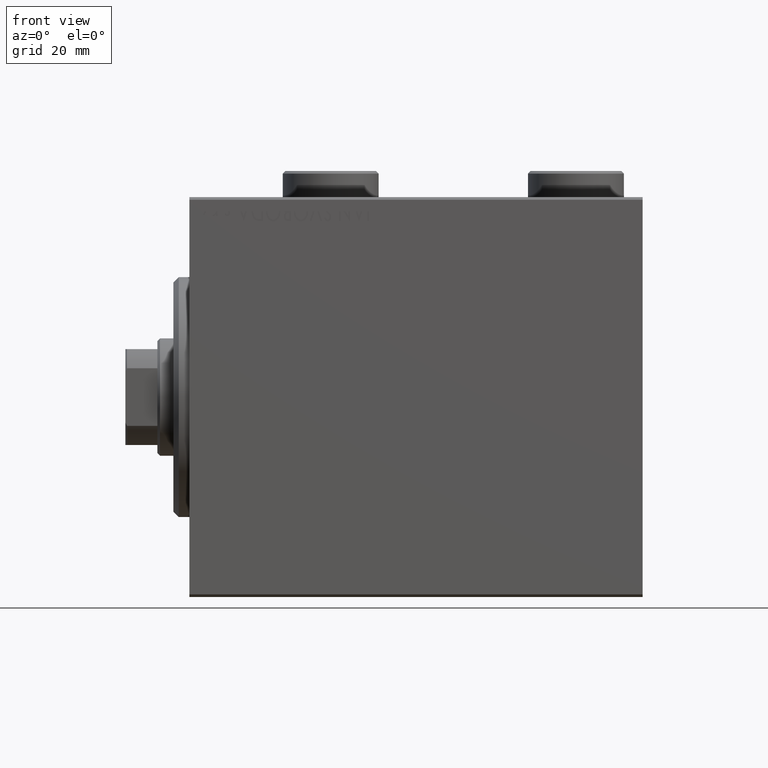
[diagram: clean part render]
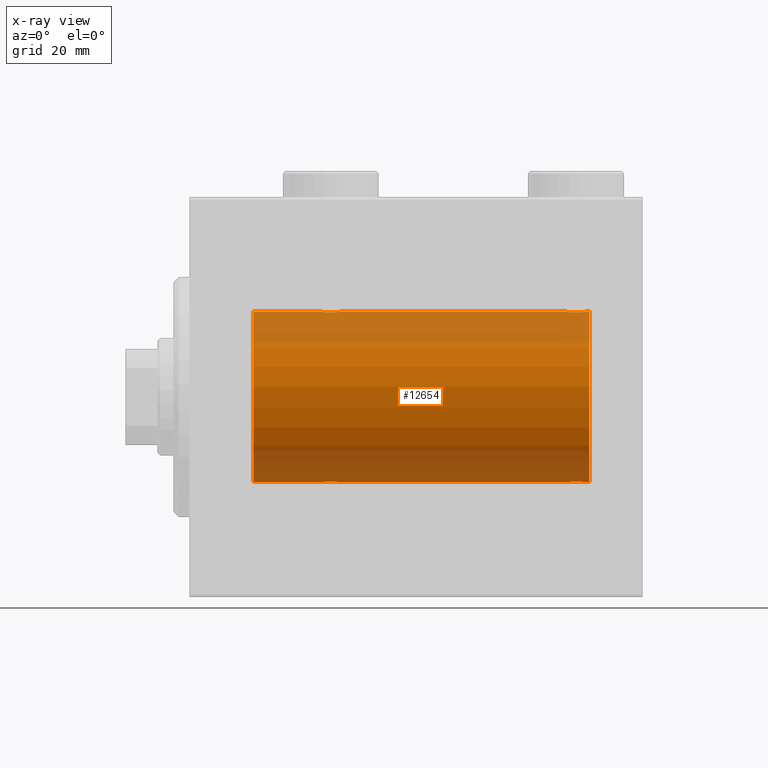
[diagram: x-ray — body ghosted, one internal face saturated and labeled with its STEP entity id]
A machine part, front view, then the same camera in x-ray: the body is ghosted and one INTERNAL B-rep face — a face not visible from any outside direction — is saturated and labeled: STEP entity #12654.
In plain terms, the highlighted cylindrical surface (partial cylindrical patch) has radius 16 mm, axis along (-1, -0, -0).
Its self-contained STEP definition (entity closure, byte-faithful):
#63 = CARTESIAN_POINT ( 'NONE',  ( 11.99999999999999645, 1.959434878635765131E-15, -16.00000000000000000 ) ) ;
#517 = LINE ( 'NONE', #31849, #35931 ) ;
#552 = EDGE_CURVE ( 'NONE', #7881, #22980, #4979, .T. ) ;
#604 = CARTESIAN_POINT ( 'NONE',  ( 75.00000000000000000, 0.000000000000000000, 16.00000000000000000 ) ) ;
#1379 = CARTESIAN_POINT ( 'NONE',  ( 71.98062885452071669, -1.935780515549992975, 15.88248768234622865 ) ) ;
#1601 = CARTESIAN_POINT ( 'NONE',  ( 25.27971966521589664, -1.589957129871035768, 15.92097237843274549 ) ) ;
#1906 = CARTESIAN_POINT ( 'NONE',  ( 24.50000000000000000, -2.739635037742051899E-23, 16.00000000000000000 ) ) ;
#2263 = CARTESIAN_POINT ( 'NONE',  ( 27.82104334803405266, -1.507256214862787713, 15.92911555180482530 ) ) ;
#2698 = CARTESIAN_POINT ( 'NONE',  ( 72.23917179650635489, -1.987201773464433607, -15.87613558886576470 ) ) ;
#2937 = CARTESIAN_POINT ( 'NONE',  ( 70.90236864042799425, -1.231048876942805403, -15.95364199493483071 ) ) ;
#3171 = CARTESIAN_POINT ( 'NONE',  ( 70.55325995304359310, -0.5272875822566887027, -15.99312147175147381 ) ) ;
#3262 = ORIENTED_EDGE ( 'NONE', *, *, #20345, .T. ) ;
#3331 = CARTESIAN_POINT ( 'NONE',  ( 27.38846140829280529, -1.796613193944152753, -15.89889131367403330 ) ) ;
#3337 = CARTESIAN_POINT ( 'NONE',  ( 24.50000000000000000, -2.931586893697621157E-15, -16.00000000000000000 ) ) ;
#3605 = CIRCLE ( 'NONE', #23441, 16.00000000000000000 ) ;
#3755 = CARTESIAN_POINT ( 'NONE',  ( 26.23629537121825095, -1.986819684797424435, 15.87618369521983475 ) ) ;
#3936 = VERTEX_POINT ( 'NONE', #3337 ) ;
#4461 = DIRECTION ( 'NONE',  ( -1.000000000000000000, -0.000000000000000000, -0.000000000000000000 ) ) ;
#4828 = VERTEX_POINT ( 'NONE', #1906 ) ;
#4979 = B_SPLINE_CURVE_WITH_KNOTS ( 'NONE', 3,
 ( #30155, #29489, #43991, #43551, #33394, #37073, #19328, #12188, #36406, #15869, #1379, #12412, #36181, #11971, #26476, #26032, #40083, #5503, #43771, #8513, #39860, #8298, #19547, #44221, #12640, #26698 ),
 .UNSPECIFIED., .F., .F.,
 ( 4, 2, 2, 2, 2, 2, 2, 2, 2, 2, 2, 2, 4 ),
 ( 0.006259031236593860792, 0.007041222816026923743, 0.007823414395459986695, 0.008214510185176517737, 0.008605605974893048779, 0.008996701764609579821, 0.009387797554326112598, 0.009778893344042641905, 0.01016998913375917295, 0.01056108492347570399, 0.01095218071319223503, 0.01173437229262532661, 0.01251656387205841645 ),
 .UNSPECIFIED. ) ;
#5054 = CARTESIAN_POINT ( 'NONE',  ( 24.90061418674620342, -1.228793614424124714, 15.95381972293797368 ) ) ;
#5480 = CARTESIAN_POINT ( 'NONE',  ( 73.82304844713208070, -1.505501573616973898, -15.92928245046055302 ) ) ;
#5499 = CARTESIAN_POINT ( 'NONE',  ( 27.14376670717340545, -1.898087287925302125, 15.88709570026284545 ) ) ;
#5503 = CARTESIAN_POINT ( 'NONE',  ( 73.38592149968499712, -1.797863738508694853, 15.89874935709250536 ) ) ;
#5905 = EDGE_CURVE ( 'NONE', #17628, #41687, #517, .T. ) ;
#5965 = VERTEX_POINT ( 'NONE', #63 ) ;
#6083 = CARTESIAN_POINT ( 'NONE',  ( 75.00000000000000000, 0.000000000000000000, 0.000000000000000000 ) ) ;
#6180 = CARTESIAN_POINT ( 'NONE',  ( 28.44674004695639624, -0.5272875822566815973, 15.99312147175146670 ) ) ;
#6182 = DIRECTION ( 'NONE',  ( -1.000000000000000000, -0.000000000000000000, -0.000000000000000000 ) ) ;
#6312 = CARTESIAN_POINT ( 'NONE',  ( 24.55325995304361086, -0.5272875822566835957, -15.99312147175147736 ) ) ;
#6415 = EDGE_CURVE ( 'NONE', #5965, #19050, #3605, .T. ) ;
#6460 = CARTESIAN_POINT ( 'NONE',  ( 70.50000000000000000, -2.738767290746308786E-23, 16.00000000000000000 ) ) ;
#6630 = B_SPLINE_CURVE_WITH_KNOTS ( 'NONE', 3,
 ( #7232, #38800, #45264, #41796, #44804, #24295, #17828, #34657, #3331, #16912, #27978, #42029, #31653, #30966, #24054, #6772, #45491, #10453, #20594, #20830, #27519, #24527, #38570, #6312, #7002, #13223 ),
 .UNSPECIFIED., .F., .F.,
 ( 4, 2, 2, 2, 2, 2, 2, 2, 2, 2, 2, 2, 4 ),
 ( 0.006259031236593877272, 0.007041222816026943693, 0.007823414395460009246, 0.008214510185176542023, 0.008605605974893074800, 0.008996701764609607577, 0.009387797554326140353, 0.009778893344042673130, 0.01016998913375920591, 0.01056108492347573868, 0.01095218071319227146, 0.01173437229262534222, 0.01251656387205841471 ),
 .UNSPECIFIED. ) ;
#6772 = CARTESIAN_POINT ( 'NONE',  ( 25.98335998918949841, -1.936513707523809469, -15.88239801746204805 ) ) ;
#6981 = EDGE_LOOP ( 'NONE', ( #27794, #10996, #34768, #39068, #24653, #42570, #8056, #27288, #3262, #40691, #40638, #15590 ) ) ;
#7002 = CARTESIAN_POINT ( 'NONE',  ( 24.50000000000000711, -0.2645044045393414311, -16.00000000000000355 ) ) ;
#7232 = CARTESIAN_POINT ( 'NONE',  ( 28.49999999999999645, 1.959434851239213200E-15, -16.00000000000000000 ) ) ;
#7549 = CARTESIAN_POINT ( 'NONE',  ( 75.00000000000000000, 0.000000000000000000, 0.000000000000000000 ) ) ;
#7881 = VERTEX_POINT ( 'NONE', #6460 ) ;
#8056 = ORIENTED_EDGE ( 'NONE', *, *, #6415, .T. ) ;
#8137 = CARTESIAN_POINT ( 'NONE',  ( 75.00000000000000000, 0.000000000000000000, 16.00000000000000000 ) ) ;
#8298 = CARTESIAN_POINT ( 'NONE',  ( 74.09763135957201996, -1.231048876942789194, 15.95364199493483426 ) ) ;
#8503 = DIRECTION ( 'NONE',  ( -1.000000000000000000, 0.000000000000000000, 0.000000000000000000 ) ) ;
#8513 = CARTESIAN_POINT ( 'NONE',  ( 73.71821872840287426, -1.591545514129673267, 15.92081325887755305 ) ) ;
#8733 = CARTESIAN_POINT ( 'NONE',  ( 25.17695155286792286, -1.505501573616977673, 15.92928245046054947 ) ) ;
#8935 = CARTESIAN_POINT ( 'NONE',  ( 74.24816627006210012, -1.005876079953902824, -15.97016854943970188 ) ) ;
#8952 = CARTESIAN_POINT ( 'NONE',  ( 26.36633336824380436, -1.999904855391111402, 15.87451985347842687 ) ) ;
#9175 = CARTESIAN_POINT ( 'NONE',  ( 27.71821872840285295, -1.591545514129674821, 15.92081325887754595 ) ) ;
#9396 = CARTESIAN_POINT ( 'NONE',  ( 26.76082820349364866, -1.987201773464435828, 15.87613558886576470 ) ) ;
#10303 = CARTESIAN_POINT ( 'NONE',  ( 71.49921634246592816, -1.736521253711148072, -15.90565326803670310 ) ) ;
#10453 = CARTESIAN_POINT ( 'NONE',  ( 25.61407850031505617, -1.797863738508699294, -15.89874935709251247 ) ) ;
#10926 = CARTESIAN_POINT ( 'NONE',  ( 75.00000000000000000, 1.959434878635765131E-15, -16.00000000000000000 ) ) ;
#10996 = ORIENTED_EDGE ( 'NONE', *, *, #13111, .T. ) ;
#11080 = DIRECTION ( 'NONE',  ( -1.000000000000000000, -0.000000000000000000, -0.000000000000000000 ) ) ;
#11101 = EDGE_CURVE ( 'NONE', #7881, #21332, #11357, .T. ) ;
#11227 = DIRECTION ( 'NONE',  ( -1.000000000000000000, 0.000000000000000000, 0.000000000000000000 ) ) ;
#11269 = EDGE_CURVE ( 'NONE', #33283, #22980, #41893, .T. ) ;
#11357 = LINE ( 'NONE', #8137, #18455 ) ;
#11552 = AXIS2_PLACEMENT_3D ( 'NONE', #7549, #11227, #25068 ) ;
#11971 = CARTESIAN_POINT ( 'NONE',  ( 72.63080408576580282, -2.000094120337579273, 15.87449600834271024 ) ) ;
#12188 = CARTESIAN_POINT ( 'NONE',  ( 71.49679215208686855, -1.735114343256368930, 15.90580722143557857 ) ) ;
#12412 = CARTESIAN_POINT ( 'NONE',  ( 72.23629537121829003, -1.986819684797422658, 15.87618369521983830 ) ) ;
#12640 = CARTESIAN_POINT ( 'NONE',  ( 74.50000000000000000, -0.2645044045393390997, 15.99999999999999645 ) ) ;
#12654 = ADVANCED_FACE ( 'NONE', ( #41339 ), #37644, .F. ) ;
#12874 = CARTESIAN_POINT ( 'NONE',  ( 75.00000000000000000, 1.959434878635765131E-15, -16.00000000000000000 ) ) ;
#13111 = EDGE_CURVE ( 'NONE', #18175, #29590, #23252, .T. ) ;
#13223 = CARTESIAN_POINT ( 'NONE',  ( 24.50000000000000000, -2.931586893697621157E-15, -16.00000000000000000 ) ) ;
#14348 = VECTOR ( 'NONE', #6182, 1000.000000000000000 ) ;
#14803 = EDGE_CURVE ( 'NONE', #41687, #3936, #6630, .T. ) ;
#15281 = CARTESIAN_POINT ( 'NONE',  ( 74.50000000000001421, 3.590027768233731054E-15, 16.00000000000000000 ) ) ;
#15590 = ORIENTED_EDGE ( 'NONE', *, *, #11269, .F. ) ;
#15651 = CARTESIAN_POINT ( 'NONE',  ( 25.49679215208682592, -1.735114343256370262, 15.90580722143557502 ) ) ;
#15869 = CARTESIAN_POINT ( 'NONE',  ( 71.85363637129542269, -1.897207606501646771, 15.88720136683946471 ) ) ;
#16539 = CARTESIAN_POINT ( 'NONE',  ( 27.38592149968496514, -1.797863738508701736, 15.89874935709250892 ) ) ;
#16744 = CARTESIAN_POINT ( 'NONE',  ( 71.17895665196596156, -1.507256214862789268, -15.92911555180481464 ) ) ;
#16755 = VECTOR ( 'NONE', #11080, 1000.000000000000000 ) ;
#16912 = CARTESIAN_POINT ( 'NONE',  ( 27.14636362870458086, -1.897207606501646104, -15.88720136683947537 ) ) ;
#17216 = CARTESIAN_POINT ( 'NONE',  ( 72.76370462878179524, -1.986819684797421326, -15.87618369521984185 ) ) ;
#17443 = CARTESIAN_POINT ( 'NONE',  ( 70.50000000000000000, -8.578174582294765095E-15, -16.00000000000000000 ) ) ;
#17626 = CARTESIAN_POINT ( 'NONE',  ( 28.49999999999999645, 1.959434851239213200E-15, -16.00000000000000000 ) ) ;
#17628 = VERTEX_POINT ( 'NONE', #29295 ) ;
#17681 = CARTESIAN_POINT ( 'NONE',  ( 73.14636362870459152, -1.897207606501649435, -15.88720136683946826 ) ) ;
#17828 = CARTESIAN_POINT ( 'NONE',  ( 27.72028033478412112, -1.589957129871027330, -15.92097237843274904 ) ) ;
#18175 = VERTEX_POINT ( 'NONE', #10926 ) ;
#18455 = VECTOR ( 'NONE', #4461, 1000.000000000000000 ) ;
#19050 = VERTEX_POINT ( 'NONE', #26622 ) ;
#19303 = CARTESIAN_POINT ( 'NONE',  ( 74.44751141031269981, -0.5244724041436332751, -15.99321727742821331 ) ) ;
#19328 = CARTESIAN_POINT ( 'NONE',  ( 71.27971966521592151, -1.589957129871035102, 15.92097237843275259 ) ) ;
#19524 = CARTESIAN_POINT ( 'NONE',  ( 73.72028033478413533, -1.589957129871036212, -15.92097237843274904 ) ) ;
#19547 = CARTESIAN_POINT ( 'NONE',  ( 74.24678128854695558, -1.008257970366810641, 15.97001510549667458 ) ) ;
#19771 = CARTESIAN_POINT ( 'NONE',  ( 28.49999999999999289, -0.2645044045393371013, 16.00000000000000000 ) ) ;
#20345 = EDGE_CURVE ( 'NONE', #4828, #21332, #44288, .T. ) ;
#20594 = CARTESIAN_POINT ( 'NONE',  ( 25.49921634246596014, -1.736521253711144963, -15.90565326803671375 ) ) ;
#20830 = CARTESIAN_POINT ( 'NONE',  ( 25.28178127159713995, -1.591545514129671046, -15.92081325887754417 ) ) ;
#21132 = CARTESIAN_POINT ( 'NONE',  ( 71.98335998918952328, -1.936513707523812577, -15.88239801746205160 ) ) ;
#21260 = CARTESIAN_POINT ( 'NONE',  ( 24.50000000000000000, -2.739635037742051899E-23, 16.00000000000000000 ) ) ;
#21332 = VERTEX_POINT ( 'NONE', #28362 ) ;
#22565 = CARTESIAN_POINT ( 'NONE',  ( 24.50000000000000355, -0.2611263091397209579, 16.00000000000000000 ) ) ;
#22794 = CARTESIAN_POINT ( 'NONE',  ( 25.85363637129542624, -1.897207606501653432, 15.88720136683947182 ) ) ;
#22980 = VERTEX_POINT ( 'NONE', #15281 ) ;
#22999 = CARTESIAN_POINT ( 'NONE',  ( 74.50000000000000000, -0.2611263091397177938, -16.00000000000000000 ) ) ;
#23231 = CARTESIAN_POINT ( 'NONE',  ( 11.99999999999999645, 0.000000000000000000, 0.000000000000000000 ) ) ;
#23252 = LINE ( 'NONE', #12874, #36875 ) ;
#23439 = CARTESIAN_POINT ( 'NONE',  ( 74.50000000000001421, 1.959434851248285101E-15, -16.00000000000000000 ) ) ;
#23441 = AXIS2_PLACEMENT_3D ( 'NONE', #23231, #8503, #37277 ) ;
#24054 = CARTESIAN_POINT ( 'NONE',  ( 26.23917179650637266, -1.987201773464430055, -15.87613558886576470 ) ) ;
#24132 = CARTESIAN_POINT ( 'NONE',  ( 71.28178127159716837, -1.591545514129675043, -15.92081325887754417 ) ) ;
#24295 = CARTESIAN_POINT ( 'NONE',  ( 27.82304844713206293, -1.505501573616970568, -15.92928245046054947 ) ) ;
#24372 = CARTESIAN_POINT ( 'NONE',  ( 71.85623329282658744, -1.898087287925303457, -15.88709570026284545 ) ) ;
#24527 = CARTESIAN_POINT ( 'NONE',  ( 24.90236864042802267, -1.231048876942801407, -15.95364199493483426 ) ) ;
#24629 = LINE ( 'NONE', #38667, #14348 ) ;
#24653 = ORIENTED_EDGE ( 'NONE', *, *, #14803, .T. ) ;
#24748 = DIRECTION ( 'NONE',  ( -1.000000000000000000, -0.000000000000000000, -0.000000000000000000 ) ) ;
#24977 = DIRECTION ( 'NONE',  ( 0.000000000000000000, 0.000000000000000000, 1.000000000000000000 ) ) ;
#25068 = DIRECTION ( 'NONE',  ( 0.000000000000000000, 0.000000000000000000, 1.000000000000000000 ) ) ;
#26032 = CARTESIAN_POINT ( 'NONE',  ( 73.01664001081054778, -1.936513707523808359, 15.88239801746206226 ) ) ;
#26476 = CARTESIAN_POINT ( 'NONE',  ( 72.76082820349367353, -1.987201773464430943, 15.87613558886576470 ) ) ;
#26622 = CARTESIAN_POINT ( 'NONE',  ( 11.99999999999999645, 0.000000000000000000, 16.00000000000000000 ) ) ;
#26674 = CARTESIAN_POINT ( 'NONE',  ( 73.50320784791317408, -1.735114343256370262, -15.90580722143557146 ) ) ;
#26698 = CARTESIAN_POINT ( 'NONE',  ( 74.50000000000001421, 3.590027768233731054E-15, 16.00000000000000000 ) ) ;
#26712 = DIRECTION ( 'NONE',  ( -1.000000000000000000, -0.000000000000000000, -0.000000000000000000 ) ) ;
#26760 = EDGE_CURVE ( 'NONE', #29590, #17628, #36670, .T. ) ;
#27288 = ORIENTED_EDGE ( 'NONE', *, *, #27696, .F. ) ;
#27377 = CARTESIAN_POINT ( 'NONE',  ( 28.49999999999999645, -1.207828523974853969E-15, 16.00000000000000000 ) ) ;
#27519 = CARTESIAN_POINT ( 'NONE',  ( 25.17895665196594379, -1.507256214862784161, -15.92911555180481820 ) ) ;
#27591 = CARTESIAN_POINT ( 'NONE',  ( 71.61407850031507394, -1.797863738508702180, -15.89874935709250892 ) ) ;
#27696 = EDGE_CURVE ( 'NONE', #4828, #19050, #24629, .T. ) ;
#27794 = ORIENTED_EDGE ( 'NONE', *, *, #30543, .F. ) ;
#27978 = CARTESIAN_POINT ( 'NONE',  ( 27.01937114547927266, -1.935780515549990088, -15.88248768234623576 ) ) ;
#28038 = VECTOR ( 'NONE', #42124, 1000.000000000000000 ) ;
#28362 = CARTESIAN_POINT ( 'NONE',  ( 28.49999999999999645, -1.207828523974853969E-15, 16.00000000000000000 ) ) ;
#28604 = LINE ( 'NONE', #42661, #16755 ) ;
#29295 = CARTESIAN_POINT ( 'NONE',  ( 70.50000000000000000, -8.578174582294765095E-15, -16.00000000000000000 ) ) ;
#29489 = CARTESIAN_POINT ( 'NONE',  ( 70.50000000000001421, -0.2611263091397203473, 16.00000000000000355 ) ) ;
#29590 = VERTEX_POINT ( 'NONE', #33296 ) ;
#29709 = CARTESIAN_POINT ( 'NONE',  ( 25.61153859170720537, -1.796613193944160969, 15.89889131367403685 ) ) ;
#30148 = CARTESIAN_POINT ( 'NONE',  ( 27.01664001081050515, -1.936513707523814354, 15.88239801746204805 ) ) ;
#30155 = CARTESIAN_POINT ( 'NONE',  ( 70.50000000000000000, -2.738767290746308786E-23, 16.00000000000000000 ) ) ;
#30366 = CARTESIAN_POINT ( 'NONE',  ( 27.50078365753405407, -1.736521253711149182, 15.90565326803671375 ) ) ;
#30543 = EDGE_CURVE ( 'NONE', #18175, #33283, #35823, .T. ) ;
#30806 = CARTESIAN_POINT ( 'NONE',  ( 70.50000000000000000, -0.2645044045393486476, -16.00000000000000000 ) ) ;
#30966 = CARTESIAN_POINT ( 'NONE',  ( 26.36919591423421139, -2.000094120337574388, -15.87449600834271024 ) ) ;
#31038 = CARTESIAN_POINT ( 'NONE',  ( 72.36919591423423981, -2.000094120337580605, -15.87449600834270669 ) ) ;
#31653 = CARTESIAN_POINT ( 'NONE',  ( 26.63366663175618498, -1.999904855391105851, -15.87451985347842687 ) ) ;
#31732 = CARTESIAN_POINT ( 'NONE',  ( 72.63366663175621341, -1.999904855391108960, -15.87451985347842687 ) ) ;
#31849 = CARTESIAN_POINT ( 'NONE',  ( 75.00000000000000000, 1.959434878635765131E-15, -16.00000000000000000 ) ) ;
#33283 = VERTEX_POINT ( 'NONE', #604 ) ;
#33296 = CARTESIAN_POINT ( 'NONE',  ( 74.50000000000001421, 1.959434851248285101E-15, -16.00000000000000000 ) ) ;
#33394 = CARTESIAN_POINT ( 'NONE',  ( 70.90061418674619631, -1.228793614424119829, 15.95381972293797013 ) ) ;
#34657 = CARTESIAN_POINT ( 'NONE',  ( 27.50320784791317763, -1.735114343256362712, -15.90580722143557502 ) ) ;
#34768 = ORIENTED_EDGE ( 'NONE', *, *, #26760, .T. ) ;
#34960 = CARTESIAN_POINT ( 'NONE',  ( 73.01937114547929752, -1.935780515549991199, -15.88248768234623576 ) ) ;
#35317 = DIRECTION ( 'NONE',  ( -1.000000000000000000, -0.000000000000000000, -0.000000000000000000 ) ) ;
#35322 = CARTESIAN_POINT ( 'NONE',  ( 24.55248858968731085, -0.5244724041436337192, 15.99321727742820975 ) ) ;
#35823 = CIRCLE ( 'NONE', #11552, 16.00000000000000000 ) ;
#35931 = VECTOR ( 'NONE', #35317, 1000.000000000000000 ) ;
#36181 = CARTESIAN_POINT ( 'NONE',  ( 72.36633336824385765, -1.999904855391108960, 15.87451985347843042 ) ) ;
#36406 = CARTESIAN_POINT ( 'NONE',  ( 71.61153859170718761, -1.796613193944154085, 15.89889131367403330 ) ) ;
#36621 = CARTESIAN_POINT ( 'NONE',  ( 24.75183372993787856, -1.005876079953904600, 15.97016854943970543 ) ) ;
#36670 = B_SPLINE_CURVE_WITH_KNOTS ( 'NONE', 3,
 ( #23439, #22999, #19303, #8935, #37049, #5480, #19524, #26674, #40727, #17681, #34960, #17216, #31732, #31038, #2698, #21132, #24372, #27591, #10303, #24132, #16744, #2937, #38416, #3171, #30806, #17443 ),
 .UNSPECIFIED., .F., .F.,
 ( 4, 2, 2, 2, 2, 2, 2, 2, 2, 2, 2, 2, 4 ),
 ( 0.006259031236593878139, 0.007041222816026954968, 0.007823414395460031798, 0.008214510185176569779, 0.008605605974893107760, 0.008996701764609645741, 0.009387797554326183722, 0.009778893344042721703, 0.01016998913375926142, 0.01056108492347579940, 0.01095218071319233738, 0.01173437229262538559, 0.01251656387205843206 ),
 .UNSPECIFIED. ) ;
#36847 = CARTESIAN_POINT ( 'NONE',  ( 25.98062885452072734, -1.935780515549995862, 15.88248768234623221 ) ) ;
#36875 = VECTOR ( 'NONE', #26712, 1000.000000000000000 ) ;
#37049 = CARTESIAN_POINT ( 'NONE',  ( 74.09938581325381790, -1.228793614424119385, -15.95381972293797013 ) ) ;
#37073 = CARTESIAN_POINT ( 'NONE',  ( 71.17695155286793351, -1.505501573616972788, 15.92928245046055657 ) ) ;
#37277 = DIRECTION ( 'NONE',  ( 0.000000000000000000, 0.000000000000000000, 1.000000000000000000 ) ) ;
#37281 = CARTESIAN_POINT ( 'NONE',  ( 28.09763135957198799, -1.231048876942802961, 15.95364199493483781 ) ) ;
#37644 = CYLINDRICAL_SURFACE ( 'NONE', #39092, 16.00000000000000000 ) ;
#37846 = EDGE_CURVE ( 'NONE', #3936, #5965, #28604, .T. ) ;
#37967 = CARTESIAN_POINT ( 'NONE',  ( 28.24678128854693426, -1.008257970366811751, 15.97001510549667103 ) ) ;
#38416 = CARTESIAN_POINT ( 'NONE',  ( 70.75321871145307284, -1.008257970366817746, -15.97001510549667103 ) ) ;
#38570 = CARTESIAN_POINT ( 'NONE',  ( 24.75321871145306218, -1.008257970366813749, -15.97001510549667458 ) ) ;
#38667 = CARTESIAN_POINT ( 'NONE',  ( 75.00000000000000000, 0.000000000000000000, 16.00000000000000000 ) ) ;
#38800 = CARTESIAN_POINT ( 'NONE',  ( 28.50000000000000355, -0.2611263091397186265, -16.00000000000000355 ) ) ;
#39068 = ORIENTED_EDGE ( 'NONE', *, *, #5905, .T. ) ;
#39092 = AXIS2_PLACEMENT_3D ( 'NONE', #6083, #24748, #24977 ) ;
#39860 = CARTESIAN_POINT ( 'NONE',  ( 73.82104334803408108, -1.507256214862775723, 15.92911555180482175 ) ) ;
#40083 = CARTESIAN_POINT ( 'NONE',  ( 73.14376670717345519, -1.898087287925297462, 15.88709570026284723 ) ) ;
#40638 = ORIENTED_EDGE ( 'NONE', *, *, #552, .T. ) ;
#40691 = ORIENTED_EDGE ( 'NONE', *, *, #11101, .F. ) ;
#40727 = CARTESIAN_POINT ( 'NONE',  ( 73.38846140829282660, -1.796613193944154974, -15.89889131367402975 ) ) ;
#41339 = FACE_OUTER_BOUND ( 'NONE', #6981, .T. ) ;
#41687 = VERTEX_POINT ( 'NONE', #17626 ) ;
#41796 = CARTESIAN_POINT ( 'NONE',  ( 28.24816627006211078, -1.005876079953899049, -15.97016854943970188 ) ) ;
#41893 = LINE ( 'NONE', #45353, #28038 ) ;
#42029 = CARTESIAN_POINT ( 'NONE',  ( 26.76370462878175260, -1.986819684797417995, -15.87618369521984185 ) ) ;
#42124 = DIRECTION ( 'NONE',  ( -1.000000000000000000, -0.000000000000000000, -0.000000000000000000 ) ) ;
#42570 = ORIENTED_EDGE ( 'NONE', *, *, #37846, .T. ) ;
#42661 = CARTESIAN_POINT ( 'NONE',  ( 75.00000000000000000, 1.959434878635765131E-15, -16.00000000000000000 ) ) ;
#43551 = CARTESIAN_POINT ( 'NONE',  ( 70.75183372993789988, -1.005876079953903046, 15.97016854943970188 ) ) ;
#43771 = CARTESIAN_POINT ( 'NONE',  ( 73.50078365753405762, -1.736521253711147628, 15.90565326803670665 ) ) ;
#43991 = CARTESIAN_POINT ( 'NONE',  ( 70.55248858968734282, -0.5244724041436340523, 15.99321727742820975 ) ) ;
#44217 = CARTESIAN_POINT ( 'NONE',  ( 26.63080408576578861, -2.000094120337581050, 15.87449600834271735 ) ) ;
#44221 = CARTESIAN_POINT ( 'NONE',  ( 74.44674004695639269, -0.5272875822566811532, 15.99312147175147025 ) ) ;
#44288 = B_SPLINE_CURVE_WITH_KNOTS ( 'NONE', 3,
 ( #21260, #22565, #35322, #36621, #5054, #8733, #1601, #15651, #29709, #22794, #36847, #3755, #8952, #44217, #9396, #30148, #5499, #16539, #30366, #9175, #2263, #37281, #37967, #6180, #19771, #27377 ),
 .UNSPECIFIED., .F., .F.,
 ( 4, 2, 2, 2, 2, 2, 2, 2, 2, 2, 2, 2, 4 ),
 ( 0.006259031236593858190, 0.007041222816026928080, 0.007823414395459998838, 0.008214510185176533349, 0.008605605974893067861, 0.008996701764609604107, 0.009387797554326138619, 0.009778893344042673130, 0.01016998913375920938, 0.01056108492347574389, 0.01095218071319227840, 0.01173437229262534048, 0.01251656387205840430 ),
 .UNSPECIFIED. ) ;
#44804 = CARTESIAN_POINT ( 'NONE',  ( 28.09938581325380724, -1.228793614424118497, -15.95381972293796835 ) ) ;
#45264 = CARTESIAN_POINT ( 'NONE',  ( 28.44751141031268915, -0.5244724041436300555, -15.99321727742820620 ) ) ;
#45353 = CARTESIAN_POINT ( 'NONE',  ( 75.00000000000000000, 0.000000000000000000, 16.00000000000000000 ) ) ;
#45491 = CARTESIAN_POINT ( 'NONE',  ( 25.85623329282660166, -1.898087287925298794, -15.88709570026284545 ) ) ;